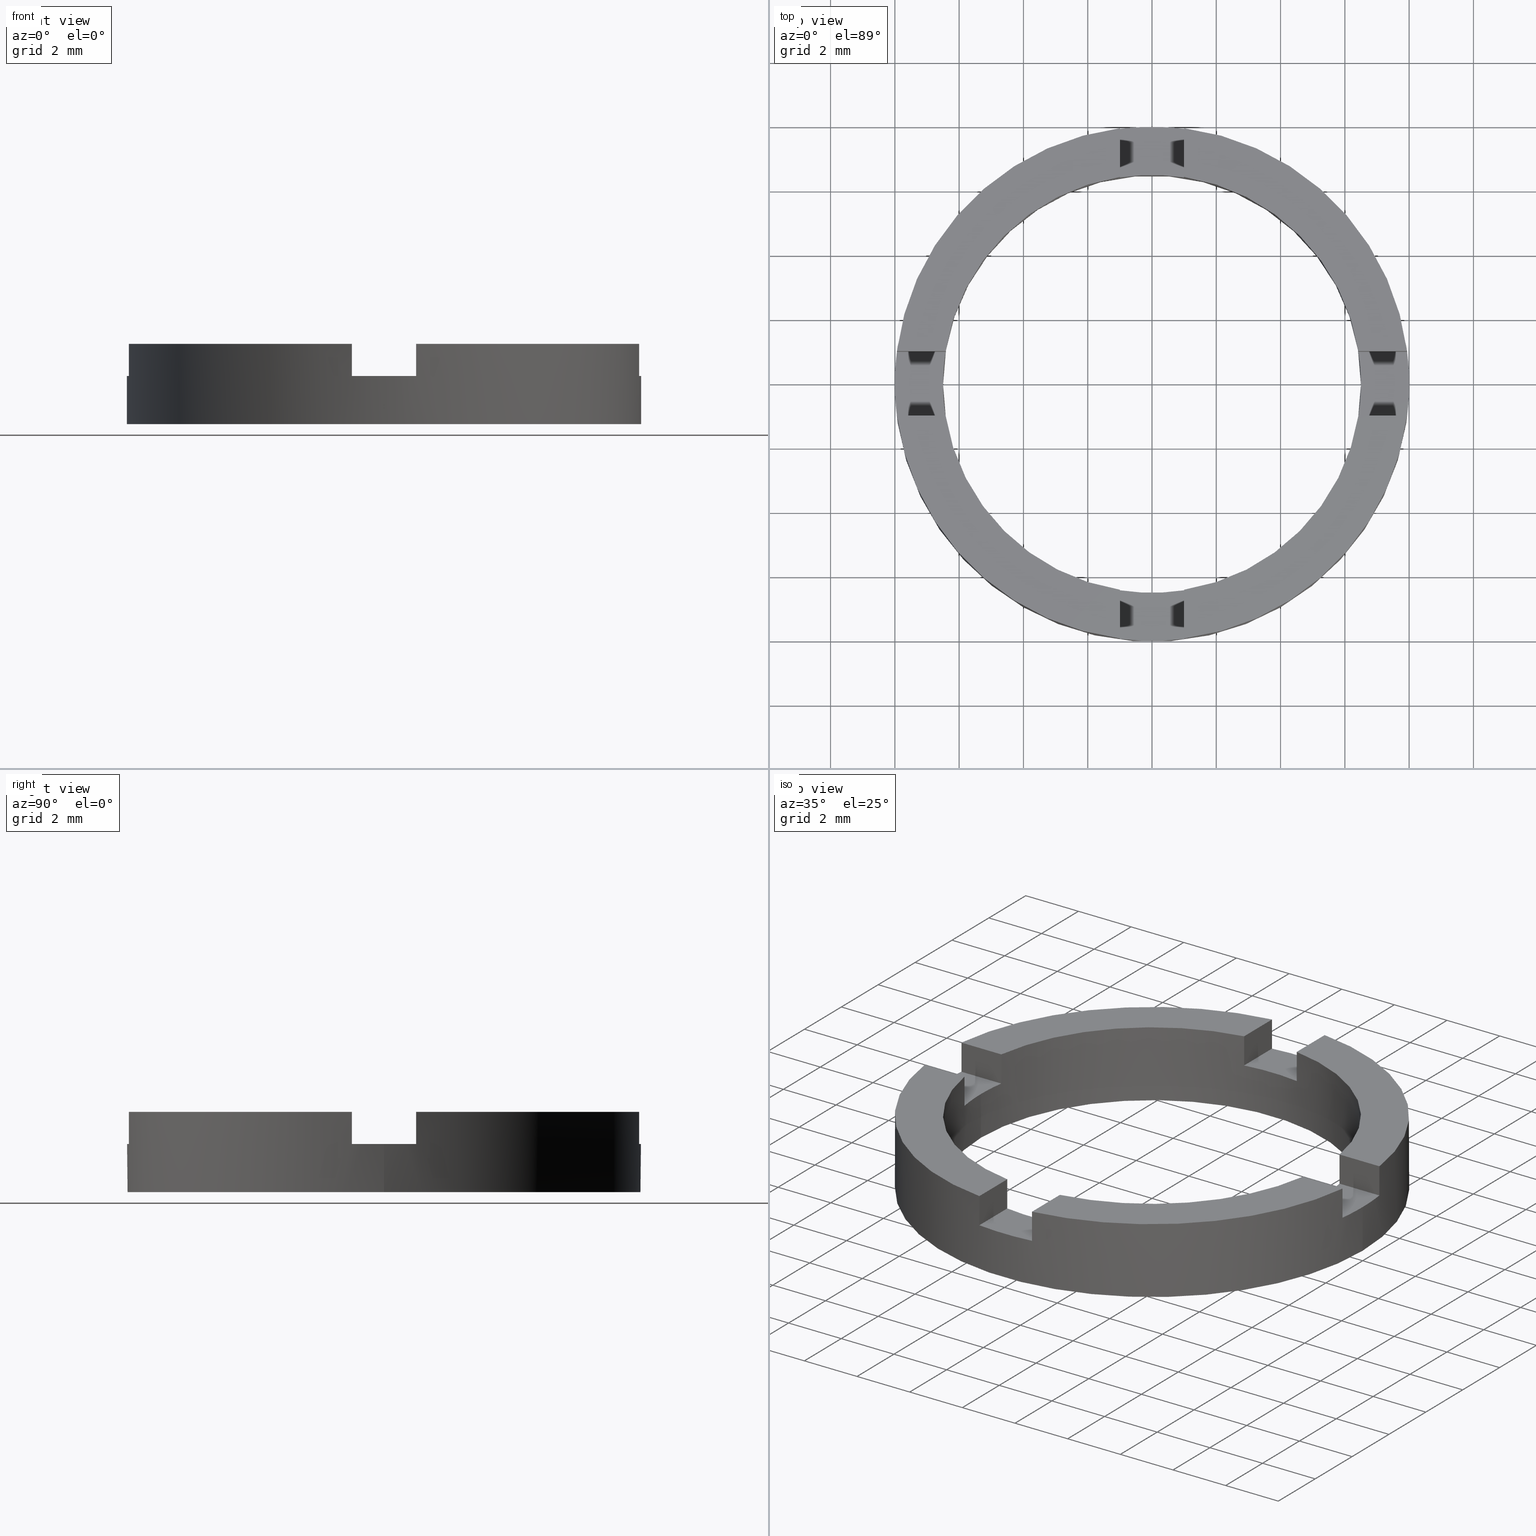
[diagram: canonical four-view strip — front | top / right | iso, engineering-drawing reading convention]
A machine part, canonical four-view strip (front | top / right | iso — engineering-drawing reading convention). The complete STEP part file that produces these views, byte-faithful:
ISO-10303-21;
HEADER;
FILE_DESCRIPTION (( 'STEP AP203' ),
    '1' );
FILE_NAME ('514040.step',
    '2024-12-26T02:31:48',
    ( 'MSI' ),
    ( '' ),
    'SwSTEP 2.0',
    'SolidWorks 2020',
    '' );
FILE_SCHEMA (( 'CONFIG_CONTROL_DESIGN' ));
ENDSEC;

DATA;
#1 = VERTEX_POINT ( 'NONE', #269 ) ;
#2 = DIRECTION ( 'NONE',  ( 1.000000000000000000, -3.740497495074990297E-15, 0.000000000000000000 ) ) ;
#3 = ADVANCED_FACE ( 'NONE', ( #358 ), #367, .T. ) ;
#4 = PLANE ( 'NONE',  #635 ) ;
#5 = CARTESIAN_POINT ( 'NONE',  ( -0.9999999999999986677, 6.422616289332565565, 1.500000000000000000 ) ) ;
#6 = EDGE_CURVE ( 'NONE', #628, #634, #374, .T. ) ;
#7 = CARTESIAN_POINT ( 'NONE',  ( 0.000000000000000000, 0.000000000000000000, 1.500000000000000000 ) ) ;
#8 = CARTESIAN_POINT ( 'NONE',  ( -0.9999999999999986677, 7.937253933193772149, 1.500000000000000000 ) ) ;
#9 = EDGE_CURVE ( 'NONE', #297, #764, #86, .T. ) ;
#10 = DIRECTION ( 'NONE',  ( -0.000000000000000000, -0.000000000000000000, -1.000000000000000000 ) ) ;
#11 = CARTESIAN_POINT ( 'NONE',  ( 8.000000000000000000, 9.797174393178825657E-16, 0.000000000000000000 ) ) ;
#12 = AXIS2_PLACEMENT_3D ( 'NONE', #762, #602, #381 ) ;
#13 = CARTESIAN_POINT ( 'NONE',  ( -0.9999999999999986677, -7.937253933193772149, 1.500000000000000000 ) ) ;
#14 = DIRECTION ( 'NONE',  ( -0.000000000000000000, -0.000000000000000000, 1.000000000000000000 ) ) ;
#15 = DESIGN_CONTEXT ( 'detailed design', #75, 'design' ) ;
#16 = DIRECTION ( 'NONE',  ( -0.000000000000000000, -0.000000000000000000, -1.000000000000000000 ) ) ;
#17 = ORIENTED_EDGE ( 'NONE', *, *, #81, .T. ) ;
#18 = ORIENTED_EDGE ( 'NONE', *, *, #682, .F. ) ;
#19 = CC_DESIGN_PERSON_AND_ORGANIZATION_ASSIGNMENT ( #742, #773, ( #534 ) ) ;
#20 = ORIENTED_EDGE ( 'NONE', *, *, #505, .F. ) ;
#21 = EDGE_CURVE ( 'NONE', #562, #483, #351, .T. ) ;
#22 = DIRECTION ( 'NONE',  ( 1.000000000000000000, 0.000000000000000000, 0.000000000000000000 ) ) ;
#23 = ORIENTED_EDGE ( 'NONE', *, *, #587, .F. ) ;
#24 = EDGE_CURVE ( 'NONE', #726, #472, #640, .T. ) ;
#25 = CARTESIAN_POINT ( 'NONE',  ( -6.422616289332562012, 1.000000000000023093, 1.500000000000000000 ) ) ;
#26 = VERTEX_POINT ( 'NONE', #13 ) ;
#27 = ORIENTED_EDGE ( 'NONE', *, *, #450, .F. ) ;
#28 = ORIENTED_EDGE ( 'NONE', *, *, #433, .F. ) ;
#29 = CARTESIAN_POINT ( 'NONE',  ( -7.937253933193768596, 1.000000000000028644, 2.500000000000000000 ) ) ;
#30 = ORIENTED_EDGE ( 'NONE', *, *, #162, .F. ) ;
#31 = ORIENTED_EDGE ( 'NONE', *, *, #191, .F. ) ;
#32 = EDGE_LOOP ( 'NONE', ( #249, #366, #95, #194 ) ) ;
#33 = AXIS2_PLACEMENT_3D ( 'NONE', #335, #252, #494 ) ;
#34 = ORIENTED_EDGE ( 'NONE', *, *, #312, .T. ) ;
#35 = EDGE_CURVE ( 'NONE', #771, #552, #106, .T. ) ;
#36 = ORIENTED_EDGE ( 'NONE', *, *, #224, .T. ) ;
#37 = APPROVAL_ROLE ( '' ) ;
#38 = ORIENTED_EDGE ( 'NONE', *, *, #337, .F. ) ;
#39 = ADVANCED_FACE ( 'NONE', ( #631 ), #84, .T. ) ;
#40 = CARTESIAN_POINT ( 'NONE',  ( -0.9999999999999986677, -7.937253933193772149, 2.500000000000000000 ) ) ;
#41 = LINE ( 'NONE', #275, #305 ) ;
#42 = APPROVAL_ROLE ( '' ) ;
#43 = CARTESIAN_POINT ( 'NONE',  ( 0.000000000000000000, 0.000000000000000000, 2.500000000000000000 ) ) ;
#44 = ADVANCED_FACE ( 'NONE', ( #348 ), #89, .F. ) ;
#45 = AXIS2_PLACEMENT_3D ( 'NONE', #712, #583, #284 ) ;
#46 = DIRECTION ( 'NONE',  ( -0.000000000000000000, -0.000000000000000000, -1.000000000000000000 ) ) ;
#47 = DIRECTION ( 'NONE',  ( -0.000000000000000000, 0.000000000000000000, 1.000000000000000000 ) ) ;
#48 = APPROVAL ( #623, 'δָ��' ) ;
#49 = CARTESIAN_POINT ( 'NONE',  ( 0.000000000000000000, 0.000000000000000000, 1.500000000000000000 ) ) ;
#50 = AXIS2_PLACEMENT_3D ( 'NONE', #43, #232, #328 ) ;
#51 = CARTESIAN_POINT ( 'NONE',  ( 1.000000000000001332, -7.937253933193772149, 1.500000000000000000 ) ) ;
#52 = ADVANCED_FACE ( 'NONE', ( #371 ), #65, .F. ) ;
#53 = DIRECTION ( 'NONE',  ( -0.000000000000000000, -0.000000000000000000, 1.000000000000000000 ) ) ;
#54 = CARTESIAN_POINT ( 'NONE',  ( 0.000000000000000000, 0.000000000000000000, 2.500000000000000000 ) ) ;
#55 = DIRECTION ( 'NONE',  ( -0.000000000000000000, -0.000000000000000000, 1.000000000000000000 ) ) ;
#56 = CARTESIAN_POINT ( 'NONE',  ( 3.740497495074986353E-15, 0.9999999999999988898, 1.500000000000000000 ) ) ;
#57 = EDGE_CURVE ( 'NONE', #511, #555, #101, .T. ) ;
#58 = EDGE_CURVE ( 'NONE', #496, #564, #617, .T. ) ;
#59 = CARTESIAN_POINT ( 'NONE',  ( -6.422616289332568229, -0.9999999999999772404, 2.500000000000000000 ) ) ;
#60 = DIRECTION ( 'NONE',  ( -1.355252715606880543E-17, 1.000000000000000000, 0.000000000000000000 ) ) ;
#61 = PRODUCT_RELATED_PRODUCT_CATEGORY ( 'detail', '', ( #530 ) ) ;
#62 = DIRECTION ( 'NONE',  ( 1.000000000000000000, 0.000000000000000000, 0.000000000000000000 ) ) ;
#63 = AXIS2_PLACEMENT_3D ( 'NONE', #401, #82, #652 ) ;
#64 = EDGE_CURVE ( 'NONE', #553, #764, #111, .T. ) ;
#65 = PLANE ( 'NONE',  #599 ) ;
#66 = CARTESIAN_POINT ( 'NONE',  ( 0.000000000000000000, 0.000000000000000000, 2.500000000000000000 ) ) ;
#67 = AXIS2_PLACEMENT_3D ( 'NONE', #76, #286, #333 ) ;
#68 = CARTESIAN_POINT ( 'NONE',  ( 0.000000000000000000, 0.000000000000000000, 1.500000000000000000 ) ) ;
#69 = DIRECTION ( 'NONE',  ( 0.000000000000000000, 1.000000000000000000, -0.000000000000000000 ) ) ;
#70 = EDGE_CURVE ( 'NONE', #628, #726, #643, .T. ) ;
#71 = DIRECTION ( 'NONE',  ( -0.000000000000000000, 0.000000000000000000, 1.000000000000000000 ) ) ;
#72 = DIRECTION ( 'NONE',  ( 1.000000000000000000, 0.000000000000000000, 0.000000000000000000 ) ) ;
#73 = PERSON_AND_ORGANIZATION_ROLE ( 'creator' ) ;
#74 = DIRECTION ( 'NONE',  ( 0.000000000000000000, 0.000000000000000000, 1.000000000000000000 ) ) ;
#75 = APPLICATION_CONTEXT ( 'configuration controlled 3d designs of mechanical parts and assemblies' ) ;
#76 = CARTESIAN_POINT ( 'NONE',  ( 0.000000000000000000, 0.000000000000000000, 1.500000000000000000 ) ) ;
#77 = DIRECTION ( 'NONE',  ( 0.000000000000000000, 0.000000000000000000, 1.000000000000000000 ) ) ;
#78 = CARTESIAN_POINT ( 'NONE',  ( -0.9999999999999986677, -7.937253933193772149, 1.500000000000000000 ) ) ;
#79 = AXIS2_PLACEMENT_3D ( 'NONE', #571, #16, #317 ) ;
#80 = AXIS2_PLACEMENT_3D ( 'NONE', #49, #47, #591 ) ;
#81 = EDGE_CURVE ( 'NONE', #782, #764, #126, .T. ) ;
#82 = DIRECTION ( 'NONE',  ( -0.000000000000000000, 0.000000000000000000, 1.000000000000000000 ) ) ;
#83 = CARTESIAN_POINT ( 'NONE',  ( -6.500000000000000888, 0.000000000000000000, 2.500000000000000000 ) ) ;
#84 = CYLINDRICAL_SURFACE ( 'NONE', #259, 8.000000000000000000 ) ;
#85 = ORIENTED_EDGE ( 'NONE', *, *, #35, .T. ) ;
#86 = LINE ( 'NONE', #569, #115 ) ;
#87 = DIRECTION ( 'NONE',  ( -0.000000000000000000, -0.000000000000000000, 1.000000000000000000 ) ) ;
#88 = ORIENTED_EDGE ( 'NONE', *, *, #21, .F. ) ;
#89 = CYLINDRICAL_SURFACE ( 'NONE', #594, 6.500000000000000888 ) ;
#90 = ORIENTED_EDGE ( 'NONE', *, *, #434, .F. ) ;
#91 = AXIS2_PLACEMENT_3D ( 'NONE', #572, #457, #125 ) ;
#92 = VECTOR ( 'NONE', #345, 1000.000000000000000 ) ;
#93 = CARTESIAN_POINT ( 'NONE',  ( 1.000000000000001332, -6.422616289332564676, 2.500000000000000000 ) ) ;
#94 = PLANE ( 'NONE',  #614 ) ;
#95 = ORIENTED_EDGE ( 'NONE', *, *, #134, .T. ) ;
#96 = DIRECTION ( 'NONE',  ( 1.000000000000000000, -3.740497495074990297E-15, 0.000000000000000000 ) ) ;
#97 = ORIENTED_EDGE ( 'NONE', *, *, #24, .T. ) ;
#98 = VERTEX_POINT ( 'NONE', #581 ) ;
#99 = EDGE_LOOP ( 'NONE', ( #741, #285 ) ) ;
#100 = ORIENTED_EDGE ( 'NONE', *, *, #460, .F. ) ;
#101 = LINE ( 'NONE', #190, #103 ) ;
#102 = ORIENTED_EDGE ( 'NONE', *, *, #204, .F. ) ;
#103 = VECTOR ( 'NONE', #625, 1000.000000000000000 ) ;
#104 = DIRECTION ( 'NONE',  ( 1.000000000000000000, 0.000000000000000000, 0.000000000000000000 ) ) ;
#105 = ORIENTED_EDGE ( 'NONE', *, *, #403, .T. ) ;
#106 = LINE ( 'NONE', #563, #92 ) ;
#107 = VERTEX_POINT ( 'NONE', #476 ) ;
#108 = AXIS2_PLACEMENT_3D ( 'NONE', #222, #276, #283 ) ;
#109 = ORIENTED_EDGE ( 'NONE', *, *, #608, .T. ) ;
#110 = EDGE_CURVE ( 'NONE', #362, #251, #670, .T. ) ;
#111 = CIRCLE ( 'NONE', #50, 8.000000000000000000 ) ;
#112 = ORIENTED_EDGE ( 'NONE', *, *, #379, .F. ) ;
#113 = ORIENTED_EDGE ( 'NONE', *, *, #538, .F. ) ;
#114 = VERTEX_POINT ( 'NONE', #584 ) ;
#115 = VECTOR ( 'NONE', #604, 1000.000000000000000 ) ;
#116 = DIRECTION ( 'NONE',  ( 1.000000000000000000, 0.000000000000000000, 0.000000000000000000 ) ) ;
#117 = ORIENTED_EDGE ( 'NONE', *, *, #537, .F. ) ;
#118 = DIRECTION ( 'NONE',  ( 1.000000000000000000, 1.355252715606880543E-17, 0.000000000000000000 ) ) ;
#119 = DIRECTION ( 'NONE',  ( -3.726944967918921492E-15, -1.000000000000000000, 0.000000000000000000 ) ) ;
#120 = AXIS2_PLACEMENT_3D ( 'NONE', #151, #469, #323 ) ;
#121 = MANIFOLD_SOLID_BREP ( '�г�-����1', #557 ) ;
#122 = LINE ( 'NONE', #253, #681 ) ;
#123 = DIRECTION ( 'NONE',  ( -1.000000000000000000, 0.000000000000000000, 0.000000000000000000 ) ) ;
#124 = LINE ( 'NONE', #638, #129 ) ;
#125 = DIRECTION ( 'NONE',  ( 1.000000000000000000, 0.000000000000000000, 0.000000000000000000 ) ) ;
#126 = LINE ( 'NONE', #279, #425 ) ;
#127 = DIRECTION ( 'NONE',  ( 0.000000000000000000, 0.000000000000000000, -1.000000000000000000 ) ) ;
#128 = FACE_OUTER_BOUND ( 'NONE', #215, .T. ) ;
#129 = VECTOR ( 'NONE', #465, 1000.000000000000000 ) ;
#130 = LINE ( 'NONE', #383, #397 ) ;
#131 = CARTESIAN_POINT ( 'NONE',  ( 0.000000000000000000, 0.000000000000000000, 2.500000000000000000 ) ) ;
#132 = FACE_OUTER_BOUND ( 'NONE', #621, .T. ) ;
#133 = CARTESIAN_POINT ( 'NONE',  ( 8.000000000000000000, 9.797174393178825657E-16, 1.500000000000000000 ) ) ;
#134 = EDGE_CURVE ( 'NONE', #114, #1, #124, .T. ) ;
#135 = CIRCLE ( 'NONE', #80, 8.000000000000000000 ) ;
#136 = LINE ( 'NONE', #5, #145 ) ;
#137 = DIRECTION ( 'NONE',  ( 0.000000000000000000, 1.000000000000000000, -0.000000000000000000 ) ) ;
#138 = LINE ( 'NONE', #277, #415 ) ;
#139 = CARTESIAN_POINT ( 'NONE',  ( 7.937253933193775701, 0.9999999999999692468, 2.500000000000000000 ) ) ;
#140 = FACE_OUTER_BOUND ( 'NONE', #492, .T. ) ;
#141 = DIRECTION ( 'NONE',  ( 0.000000000000000000, 0.000000000000000000, 1.000000000000000000 ) ) ;
#142 = CIRCLE ( 'NONE', #63, 8.000000000000000000 ) ;
#143 = CIRCLE ( 'NONE', #497, 8.000000000000000000 ) ;
#144 = CARTESIAN_POINT ( 'NONE',  ( 1.000000000000001332, 1.355252715606882391E-17, 2.500000000000000000 ) ) ;
#145 = VECTOR ( 'NONE', #53, 1000.000000000000000 ) ;
#146 = VECTOR ( 'NONE', #234, 1000.000000000000000 ) ;
#147 = ADVANCED_FACE ( 'NONE', ( #132 ), #326, .T. ) ;
#148 = APPROVAL_ROLE ( '' ) ;
#149 = CIRCLE ( 'NONE', #519, 8.000000000000000000 ) ;
#150 = LINE ( 'NONE', #306, #418 ) ;
#151 = CARTESIAN_POINT ( 'NONE',  ( 0.000000000000000000, 0.000000000000000000, 2.500000000000000000 ) ) ;
#152 = FACE_OUTER_BOUND ( 'NONE', #32, .T. ) ;
#153 = FACE_OUTER_BOUND ( 'NONE', #554, .T. ) ;
#154 = APPROVAL_STATUS ( 'not_yet_approved' ) ;
#155 = DIRECTION ( 'NONE',  ( 0.000000000000000000, 0.000000000000000000, 1.000000000000000000 ) ) ;
#156 = LINE ( 'NONE', #593, #658 ) ;
#157 = VECTOR ( 'NONE', #545, 1000.000000000000000 ) ;
#158 = CARTESIAN_POINT ( 'NONE',  ( 0.000000000000000000, 0.000000000000000000, 2.500000000000000000 ) ) ;
#159 = AXIS2_PLACEMENT_3D ( 'NONE', #349, #192, #62 ) ;
#160 = CIRCLE ( 'NONE', #321, 6.500000000000000888 ) ;
#161 = EDGE_CURVE ( 'NONE', #26, #114, #143, .T. ) ;
#162 = EDGE_CURVE ( 'NONE', #642, #748, #130, .T. ) ;
#163 = LINE ( 'NONE', #319, #166 ) ;
#164 = PERSON_AND_ORGANIZATION ( #598, #427 ) ;
#165 = DIRECTION ( 'NONE',  ( -0.000000000000000000, 0.000000000000000000, 1.000000000000000000 ) ) ;
#166 = VECTOR ( 'NONE', #566, 1000.000000000000000 ) ;
#167 = VECTOR ( 'NONE', #245, 1000.000000000000000 ) ;
#168 = FACE_OUTER_BOUND ( 'NONE', #525, .T. ) ;
#169 = CARTESIAN_POINT ( 'NONE',  ( -6.422616289332568229, -0.9999999999999772404, 1.500000000000000000 ) ) ;
#170 = APPROVAL ( #532, 'δָ��' ) ;
#171 = DIRECTION ( 'NONE',  ( -0.000000000000000000, -0.000000000000000000, -1.000000000000000000 ) ) ;
#172 = AXIS2_PLACEMENT_3D ( 'NONE', #421, #498, #734 ) ;
#173 = ADVANCED_FACE ( 'NONE', ( #140 ), #578, .T. ) ;
#174 = CARTESIAN_POINT ( 'NONE',  ( -7.937253933193775701, -0.9999999999999715783, 1.500000000000000000 ) ) ;
#175 = FACE_OUTER_BOUND ( 'NONE', #495, .T. ) ;
#176 = DIRECTION ( 'NONE',  ( -0.000000000000000000, 0.000000000000000000, 1.000000000000000000 ) ) ;
#177 = DIRECTION ( 'NONE',  ( -3.740497495074990297E-15, -1.000000000000000000, 0.000000000000000000 ) ) ;
#178 = LINE ( 'NONE', #692, #443 ) ;
#179 = DATE_AND_TIME ( #687, #710 ) ;
#180 = AXIS2_PLACEMENT_3D ( 'NONE', #56, #725, #96 ) ;
#181 = CARTESIAN_POINT ( 'NONE',  ( 6.422616289332569117, 0.9999999999999749090, 1.500000000000000000 ) ) ;
#182 = CARTESIAN_POINT ( 'NONE',  ( 1.000000000000001332, 7.937253933193772149, 1.500000000000000000 ) ) ;
#183 = DATE_AND_TIME ( #706, #444 ) ;
#184 = CIRCLE ( 'NONE', #91, 6.500000000000000888 ) ;
#185 = PERSON_AND_ORGANIZATION ( #598, #427 ) ;
#186 = DIRECTION ( 'NONE',  ( 1.000000000000000000, 1.355252715606880543E-17, 0.000000000000000000 ) ) ;
#187 = FACE_OUTER_BOUND ( 'NONE', #750, .T. ) ;
#188 = PRODUCT_DEFINITION ( 'δ֪', '', #534, #15 ) ;
#189 = FACE_OUTER_BOUND ( 'NONE', #620, .T. ) ;
#190 = CARTESIAN_POINT ( 'NONE',  ( 6.422616289332569117, 0.9999999999999749090, 1.500000000000000000 ) ) ;
#191 = EDGE_CURVE ( 'NONE', #726, #477, #138, .T. ) ;
#192 = DIRECTION ( 'NONE',  ( 0.000000000000000000, 0.000000000000000000, 1.000000000000000000 ) ) ;
#193 = CIRCLE ( 'NONE', #236, 6.500000000000000888 ) ;
#194 = ORIENTED_EDGE ( 'NONE', *, *, #527, .T. ) ;
#195 = PERSON_AND_ORGANIZATION ( #598, #427 ) ;
#196 = ORIENTED_EDGE ( 'NONE', *, *, #205, .T. ) ;
#197 = DIRECTION ( 'NONE',  ( -0.000000000000000000, 0.000000000000000000, 1.000000000000000000 ) ) ;
#198 = DIRECTION ( 'NONE',  ( 1.000000000000000000, -3.740497495074990297E-15, 0.000000000000000000 ) ) ;
#199 = CC_DESIGN_PERSON_AND_ORGANIZATION_ASSIGNMENT ( #708, #278, ( #534 ) ) ;
#200 = CARTESIAN_POINT ( 'NONE',  ( 0.000000000000000000, 0.000000000000000000, 0.000000000000000000 ) ) ;
#201 = VERTEX_POINT ( 'NONE', #40 ) ;
#202 = ORIENTED_EDGE ( 'NONE', *, *, #696, .F. ) ;
#203 = VERTEX_POINT ( 'NONE', #274 ) ;
#204 = EDGE_CURVE ( 'NONE', #483, #562, #392, .T. ) ;
#205 = EDGE_CURVE ( 'NONE', #251, #748, #683, .T. ) ;
#206 = ORIENTED_EDGE ( 'NONE', *, *, #260, .T. ) ;
#207 = DATE_AND_TIME ( #737, #474 ) ;
#208 = ORIENTED_EDGE ( 'NONE', *, *, #110, .T. ) ;
#209 = PLANE ( 'NONE',  #12 ) ;
#210 = LOCAL_TIME ( 10, 31, 48.00000000000000000, #485 ) ;
#211 = ORIENTED_EDGE ( 'NONE', *, *, #695, .F. ) ;
#212 = CARTESIAN_POINT ( 'NONE',  ( 0.000000000000000000, 0.000000000000000000, 1.500000000000000000 ) ) ;
#213 = ORIENTED_EDGE ( 'NONE', *, *, #334, .T. ) ;
#214 = PERSON_AND_ORGANIZATION ( #598, #427 ) ;
#215 = EDGE_LOOP ( 'NONE', ( #767, #753, #770, #518, #522, #754 ) ) ;
#216 = APPROVAL_PERSON_ORGANIZATION ( #747, #48, #42 ) ;
#217 = VERTEX_POINT ( 'NONE', #459 ) ;
#218 = CARTESIAN_POINT ( 'NONE',  ( 0.000000000000000000, 0.000000000000000000, 1.500000000000000000 ) ) ;
#219 = ORIENTED_EDGE ( 'NONE', *, *, #501, .T. ) ;
#220 = ORIENTED_EDGE ( 'NONE', *, *, #134, .F. ) ;
#221 = DIRECTION ( 'NONE',  ( 1.000000000000000000, 0.000000000000000000, 0.000000000000000000 ) ) ;
#222 = CARTESIAN_POINT ( 'NONE',  ( 0.000000000000000000, 0.000000000000000000, 0.000000000000000000 ) ) ;
#223 = ORIENTED_EDGE ( 'NONE', *, *, #272, .F. ) ;
#224 = EDGE_CURVE ( 'NONE', #201, #507, #673, .T. ) ;
#225 = EDGE_CURVE ( 'NONE', #238, #201, #410, .T. ) ;
#226 = EDGE_LOOP ( 'NONE', ( #735, #618, #473, #565 ) ) ;
#227 = DIRECTION ( 'NONE',  ( 0.000000000000000000, 0.000000000000000000, 1.000000000000000000 ) ) ;
#228 = ORIENTED_EDGE ( 'NONE', *, *, #746, .F. ) ;
#229 = APPLICATION_PROTOCOL_DEFINITION ( 'international standard', 'config_control_design', 1994, #385 ) ;
#230 = CARTESIAN_POINT ( 'NONE',  ( 0.000000000000000000, 0.000000000000000000, 2.500000000000000000 ) ) ;
#231 = DATE_TIME_ROLE ( 'creation_date' ) ;
#232 = DIRECTION ( 'NONE',  ( 0.000000000000000000, 0.000000000000000000, 1.000000000000000000 ) ) ;
#233 = DIRECTION ( 'NONE',  ( -1.355252715606880543E-17, 1.000000000000000000, 0.000000000000000000 ) ) ;
#234 = DIRECTION ( 'NONE',  ( -0.000000000000000000, -0.000000000000000000, 1.000000000000000000 ) ) ;
#235 = CC_DESIGN_DATE_AND_TIME_ASSIGNMENT ( #482, #701, ( #438 ) ) ;
#236 = AXIS2_PLACEMENT_3D ( 'NONE', #755, #141, #116 ) ;
#237 = CARTESIAN_POINT ( 'NONE',  ( -8.000000000000000000, 0.000000000000000000, 1.500000000000000000 ) ) ;
#238 = VERTEX_POINT ( 'NONE', #536 ) ;
#239 = DIRECTION ( 'NONE',  ( -1.000000000000000000, 0.000000000000000000, 0.000000000000000000 ) ) ;
#240 = ORIENTED_EDGE ( 'NONE', *, *, #537, .T. ) ;
#241 = EDGE_LOOP ( 'NONE', ( #294, #18, #206, #629 ) ) ;
#242 = CARTESIAN_POINT ( 'NONE',  ( 0.000000000000000000, 0.000000000000000000, 0.000000000000000000 ) ) ;
#243 = EDGE_LOOP ( 'NONE', ( #30, #250, #17, #258, #117, #731, #728, #626, #90, #514, #208, #196 ) ) ;
#244 = ORIENTED_EDGE ( 'NONE', *, *, #70, .T. ) ;
#245 = DIRECTION ( 'NONE',  ( 0.000000000000000000, 1.000000000000000000, -0.000000000000000000 ) ) ;
#246 = CARTESIAN_POINT ( 'NONE',  ( 6.422616289332561124, -1.000000000000024869, 2.500000000000000000 ) ) ;
#247 = EDGE_LOOP ( 'NONE', ( #223, #491, #256, #213, #105, #354 ) ) ;
#248 = EDGE_CURVE ( 'NONE', #466, #297, #404, .T. ) ;
#249 = ORIENTED_EDGE ( 'NONE', *, *, #543, .F. ) ;
#250 = ORIENTED_EDGE ( 'NONE', *, *, #403, .F. ) ;
#251 = VERTEX_POINT ( 'NONE', #454 ) ;
#252 = DIRECTION ( 'NONE',  ( 0.000000000000000000, 0.000000000000000000, 1.000000000000000000 ) ) ;
#253 = CARTESIAN_POINT ( 'NONE',  ( 6.422616289332561124, -1.000000000000024869, 1.500000000000000000 ) ) ;
#254 = EDGE_LOOP ( 'NONE', ( #512, #766, #480, #85 ) ) ;
#255 = ORIENTED_EDGE ( 'NONE', *, *, #758, .F. ) ;
#256 = ORIENTED_EDGE ( 'NONE', *, *, #587, .T. ) ;
#257 =( GEOMETRIC_REPRESENTATION_CONTEXT ( 3 ) GLOBAL_UNCERTAINTY_ASSIGNED_CONTEXT ( ( #303 ) ) GLOBAL_UNIT_ASSIGNED_CONTEXT ( ( #510, #678, #445 ) ) REPRESENTATION_CONTEXT ( 'NONE', 'WORKASPACE' ) );
#258 = ORIENTED_EDGE ( 'NONE', *, *, #64, .F. ) ;
#259 = AXIS2_PLACEMENT_3D ( 'NONE', #674, #756, #262 ) ;
#260 = EDGE_CURVE ( 'NONE', #555, #552, #668, .T. ) ;
#261 = CARTESIAN_POINT ( 'NONE',  ( -0.9999999999999986677, 7.937253933193772149, 1.500000000000000000 ) ) ;
#262 = DIRECTION ( 'NONE',  ( -1.000000000000000000, 0.000000000000000000, 0.000000000000000000 ) ) ;
#263 = PRODUCT_DEFINITION_SHAPE ( 'NONE', 'NONE',  #188 ) ;
#264 = CARTESIAN_POINT ( 'NONE',  ( 7.937253933193775701, 0.9999999999999692468, 1.500000000000000000 ) ) ;
#265 = AXIS2_PLACEMENT_3D ( 'NONE', #7, #653, #104 ) ;
#266 = CARTESIAN_POINT ( 'NONE',  ( 0.000000000000000000, 0.000000000000000000, 1.500000000000000000 ) ) ;
#267 = CARTESIAN_POINT ( 'NONE',  ( 3.740497495074986353E-15, 0.9999999999999988898, 1.500000000000000000 ) ) ;
#268 = DIRECTION ( 'NONE',  ( 1.000000000000000000, 0.000000000000000000, 0.000000000000000000 ) ) ;
#269 = CARTESIAN_POINT ( 'NONE',  ( 1.000000000000001332, -6.422616289332564676, 1.500000000000000000 ) ) ;
#270 = CARTESIAN_POINT ( 'NONE',  ( 0.000000000000000000, 0.000000000000000000, 1.500000000000000000 ) ) ;
#271 = PLANE ( 'NONE',  #388 ) ;
#272 = EDGE_CURVE ( 'NONE', #511, #771, #407, .T. ) ;
#273 = AXIS2_PLACEMENT_3D ( 'NONE', #451, #71, #221 ) ;
#274 = CARTESIAN_POINT ( 'NONE',  ( -0.9999999999999986677, 6.422616289332565565, 2.500000000000000000 ) ) ;
#275 = CARTESIAN_POINT ( 'NONE',  ( -0.9999999999999986677, -6.422616289332565565, 1.500000000000000000 ) ) ;
#276 = DIRECTION ( 'NONE',  ( 0.000000000000000000, 0.000000000000000000, 1.000000000000000000 ) ) ;
#277 = CARTESIAN_POINT ( 'NONE',  ( 1.000000000000001332, 1.355252715606882391E-17, 1.500000000000000000 ) ) ;
#278 = PERSON_AND_ORGANIZATION_ROLE ( 'creator' ) ;
#279 = CARTESIAN_POINT ( 'NONE',  ( 7.937253933193768596, -1.000000000000030642, 1.500000000000000000 ) ) ;
#280 = AXIS2_PLACEMENT_3D ( 'NONE', #774, #155, #533 ) ;
#281 = EDGE_CURVE ( 'NONE', #472, #743, #424, .T. ) ;
#282 = ORIENTED_EDGE ( 'NONE', *, *, #316, .F. ) ;
#283 = DIRECTION ( 'NONE',  ( 1.000000000000000000, 0.000000000000000000, 0.000000000000000000 ) ) ;
#284 = DIRECTION ( 'NONE',  ( 1.000000000000000000, 0.000000000000000000, 0.000000000000000000 ) ) ;
#285 = ORIENTED_EDGE ( 'NONE', *, *, #21, .T. ) ;
#286 = DIRECTION ( 'NONE',  ( 0.000000000000000000, -0.000000000000000000, -1.000000000000000000 ) ) ;
#287 = ORIENTED_EDGE ( 'NONE', *, *, #35, .F. ) ;
#288 = VERTEX_POINT ( 'NONE', #597 ) ;
#289 = ORIENTED_EDGE ( 'NONE', *, *, #575, .T. ) ;
#290 = AXIS2_PLACEMENT_3D ( 'NONE', #230, #77, #526 ) ;
#291 = DIRECTION ( 'NONE',  ( 1.000000000000000000, 0.000000000000000000, 0.000000000000000000 ) ) ;
#292 = ORIENTED_EDGE ( 'NONE', *, *, #70, .F. ) ;
#293 = ORIENTED_EDGE ( 'NONE', *, *, #344, .T. ) ;
#294 = ORIENTED_EDGE ( 'NONE', *, *, #281, .F. ) ;
#295 = ORIENTED_EDGE ( 'NONE', *, *, #24, .F. ) ;
#296 = DIRECTION ( 'NONE',  ( 1.000000000000000000, 8.881784197001250746E-15, 0.000000000000000000 ) ) ;
#297 = VERTEX_POINT ( 'NONE', #246 ) ;
#298 = ORIENTED_EDGE ( 'NONE', *, *, #248, .T. ) ;
#299 = ADVANCED_FACE ( 'NONE', ( #128 ), #307, .T. ) ;
#300 = ORIENTED_EDGE ( 'NONE', *, *, #224, .F. ) ;
#301 = ORIENTED_EDGE ( 'NONE', *, *, #713, .T. ) ;
#302 = EDGE_CURVE ( 'NONE', #477, #743, #387, .T. ) ;
#303 = UNCERTAINTY_MEASURE_WITH_UNIT (LENGTH_MEASURE( 1.000000000000000082E-05 ), #510, 'distance_accuracy_value', 'NONE');
#304 = DIRECTION ( 'NONE',  ( 1.000000000000000000, 0.000000000000000000, 0.000000000000000000 ) ) ;
#305 = VECTOR ( 'NONE', #14, 1000.000000000000000 ) ;
#306 = CARTESIAN_POINT ( 'NONE',  ( 1.000000000000001332, 1.355252715606882391E-17, 2.500000000000000000 ) ) ;
#307 = PLANE ( 'NONE',  #757 ) ;
#308 = FACE_OUTER_BOUND ( 'NONE', #247, .T. ) ;
#309 = CIRCLE ( 'NONE', #749, 8.000000000000000000 ) ;
#310 = DIRECTION ( 'NONE',  ( -0.000000000000000000, -0.000000000000000000, 1.000000000000000000 ) ) ;
#311 = APPROVAL ( #154, 'δָ��' ) ;
#312 = EDGE_CURVE ( 'NONE', #634, #496, #662, .T. ) ;
#313 = CARTESIAN_POINT ( 'NONE',  ( 3.740497495074986353E-15, 0.9999999999999988898, 2.500000000000000000 ) ) ;
#314 = DIRECTION ( 'NONE',  ( 1.000000000000000000, 0.000000000000000000, 0.000000000000000000 ) ) ;
#315 = AXIS2_PLACEMENT_3D ( 'NONE', #605, #517, #691 ) ;
#316 = EDGE_CURVE ( 'NONE', #765, #297, #122, .T. ) ;
#317 = DIRECTION ( 'NONE',  ( -1.000000000000000000, 0.000000000000000000, 0.000000000000000000 ) ) ;
#318 = CARTESIAN_POINT ( 'NONE',  ( -0.9999999999999986677, 0.000000000000000000, 1.500000000000000000 ) ) ;
#319 = CARTESIAN_POINT ( 'NONE',  ( 1.000000000000001332, -6.422616289332564676, 1.500000000000000000 ) ) ;
#320 = CARTESIAN_POINT ( 'NONE',  ( 1.000000000000001332, 7.937253933193772149, 2.500000000000000000 ) ) ;
#321 = AXIS2_PLACEMENT_3D ( 'NONE', #270, #368, #570 ) ;
#322 = CARTESIAN_POINT ( 'NONE',  ( 6.500000000000000888, 7.960204194457796463E-16, 2.500000000000000000 ) ) ;
#323 = DIRECTION ( 'NONE',  ( 1.000000000000000000, 0.000000000000000000, 0.000000000000000000 ) ) ;
#324 = DIRECTION ( 'NONE',  ( 1.000000000000000000, 0.000000000000000000, 0.000000000000000000 ) ) ;
#325 = DIRECTION ( 'NONE',  ( -0.000000000000000000, -0.000000000000000000, 1.000000000000000000 ) ) ;
#326 = PLANE ( 'NONE',  #290 ) ;
#327 = SECURITY_CLASSIFICATION_LEVEL ( 'unclassified' ) ;
#328 = DIRECTION ( 'NONE',  ( 1.000000000000000000, 0.000000000000000000, 0.000000000000000000 ) ) ;
#329 = ADVANCED_FACE ( 'NONE', ( #412 ), #94, .T. ) ;
#330 = CARTESIAN_POINT ( 'NONE',  ( 0.000000000000000000, 0.000000000000000000, 0.000000000000000000 ) ) ;
#331 = APPLICATION_PROTOCOL_DEFINITION ( 'international standard', 'config_control_design', 1994, #75 ) ;
#332 = DIRECTION ( 'NONE',  ( 0.000000000000000000, -0.000000000000000000, -1.000000000000000000 ) ) ;
#333 = DIRECTION ( 'NONE',  ( 1.000000000000000000, 0.000000000000000000, 0.000000000000000000 ) ) ;
#334 = EDGE_CURVE ( 'NONE', #765, #782, #665, .T. ) ;
#335 = CARTESIAN_POINT ( 'NONE',  ( 0.000000000000000000, 0.000000000000000000, 2.500000000000000000 ) ) ;
#336 = AXIS2_PLACEMENT_3D ( 'NONE', #266, #197, #357 ) ;
#337 = EDGE_CURVE ( 'NONE', #355, #363, #660, .T. ) ;
#338 = CARTESIAN_POINT ( 'NONE',  ( 0.000000000000000000, 0.000000000000000000, 1.500000000000000000 ) ) ;
#339 = PLANE ( 'NONE',  #172 ) ;
#340 = DIRECTION ( 'NONE',  ( -0.000000000000000000, 0.000000000000000000, 1.000000000000000000 ) ) ;
#341 = AXIS2_PLACEMENT_3D ( 'NONE', #158, #227, #582 ) ;
#342 = DIRECTION ( 'NONE',  ( -0.000000000000000000, -0.000000000000000000, -1.000000000000000000 ) ) ;
#343 = DIRECTION ( 'NONE',  ( 1.000000000000000000, -3.740497495074990297E-15, 0.000000000000000000 ) ) ;
#344 = EDGE_CURVE ( 'NONE', #355, #513, #657, .T. ) ;
#345 = DIRECTION ( 'NONE',  ( -0.000000000000000000, -0.000000000000000000, 1.000000000000000000 ) ) ;
#346 = ORIENTED_EDGE ( 'NONE', *, *, #661, .T. ) ;
#347 = ORIENTED_EDGE ( 'NONE', *, *, #568, .F. ) ;
#348 = FACE_OUTER_BOUND ( 'NONE', #378, .T. ) ;
#349 = CARTESIAN_POINT ( 'NONE',  ( 0.000000000000000000, 0.000000000000000000, 2.500000000000000000 ) ) ;
#350 = VERTEX_POINT ( 'NONE', #707 ) ;
#351 = CIRCLE ( 'NONE', #481, 6.500000000000000888 ) ;
#352 = EDGE_LOOP ( 'NONE', ( #353, #244, #775, #346 ) ) ;
#353 = ORIENTED_EDGE ( 'NONE', *, *, #6, .F. ) ;
#354 = ORIENTED_EDGE ( 'NONE', *, *, #460, .T. ) ;
#355 = VERTEX_POINT ( 'NONE', #409 ) ;
#356 = ORIENTED_EDGE ( 'NONE', *, *, #58, .F. ) ;
#357 = DIRECTION ( 'NONE',  ( 1.000000000000000000, 0.000000000000000000, 0.000000000000000000 ) ) ;
#358 = FACE_OUTER_BOUND ( 'NONE', #352, .T. ) ;
#359 = CARTESIAN_POINT ( 'NONE',  ( -6.422616289332562012, 1.000000000000023093, 1.500000000000000000 ) ) ;
#360 = ORIENTED_EDGE ( 'NONE', *, *, #746, .T. ) ;
#361 = ORIENTED_EDGE ( 'NONE', *, *, #608, .F. ) ;
#362 = VERTEX_POINT ( 'NONE', #237 ) ;
#363 = VERTEX_POINT ( 'NONE', #539 ) ;
#364 = ORIENTED_EDGE ( 'NONE', *, *, #661, .F. ) ;
#365 = ORIENTED_EDGE ( 'NONE', *, *, #162, .T. ) ;
#366 = ORIENTED_EDGE ( 'NONE', *, *, #161, .T. ) ;
#367 = PLANE ( 'NONE',  #336 ) ;
#368 = DIRECTION ( 'NONE',  ( 0.000000000000000000, -0.000000000000000000, -1.000000000000000000 ) ) ;
#369 = PLANE ( 'NONE',  #430 ) ;
#370 = ORIENTED_EDGE ( 'NONE', *, *, #586, .T. ) ;
#371 = FACE_OUTER_BOUND ( 'NONE', #504, .T. ) ;
#372 = ORIENTED_EDGE ( 'NONE', *, *, #538, .T. ) ;
#373 = CC_DESIGN_APPROVAL ( #170, ( #534 ) ) ;
#374 = LINE ( 'NONE', #318, #633 ) ;
#375 = DIRECTION ( 'NONE',  ( 1.000000000000000000, 0.000000000000000000, 0.000000000000000000 ) ) ;
#376 = ORIENTED_EDGE ( 'NONE', *, *, #595, .F. ) ;
#377 = AXIS2_PLACEMENT_3D ( 'NONE', #242, #781, #304 ) ;
#378 = EDGE_LOOP ( 'NONE', ( #471, #347, #622, #520, #295, #292, #645, #487, #738, #28, #372, #88 ) ) ;
#379 = EDGE_CURVE ( 'NONE', #748, #251, #663, .T. ) ;
#380 = ORIENTED_EDGE ( 'NONE', *, *, #64, .T. ) ;
#381 = DIRECTION ( 'NONE',  ( 1.000000000000000000, -3.726944967918921492E-15, 0.000000000000000000 ) ) ;
#382 = DIRECTION ( 'NONE',  ( -1.355252715606880543E-17, 1.000000000000000000, 0.000000000000000000 ) ) ;
#383 = CARTESIAN_POINT ( 'NONE',  ( 8.000000000000000000, 9.797174393178825657E-16, 2.500000000000000000 ) ) ;
#384 = VECTOR ( 'NONE', #386, 1000.000000000000000 ) ;
#385 = APPLICATION_CONTEXT ( 'configuration controlled 3d designs of mechanical parts and assemblies' ) ;
#386 = DIRECTION ( 'NONE',  ( -0.000000000000000000, -0.000000000000000000, -1.000000000000000000 ) ) ;
#387 = LINE ( 'NONE', #182, #672 ) ;
#388 = AXIS2_PLACEMENT_3D ( 'NONE', #606, #119, #436 ) ;
#389 = VECTOR ( 'NONE', #60, 1000.000000000000000 ) ;
#390 = AXIS2_PLACEMENT_3D ( 'NONE', #330, #74, #619 ) ;
#391 = DIRECTION ( 'NONE',  ( 0.000000000000000000, 0.000000000000000000, 1.000000000000000000 ) ) ;
#392 = CIRCLE ( 'NONE', #390, 6.500000000000000888 ) ;
#393 = VECTOR ( 'NONE', #310, 1000.000000000000000 ) ;
#394 = MECHANICAL_CONTEXT ( 'NONE', #385, 'mechanical' ) ;
#395 = CARTESIAN_POINT ( 'NONE',  ( -3.726944967918925436E-15, -1.000000000000001110, 1.500000000000000000 ) ) ;
#396 = DIRECTION ( 'NONE',  ( -0.000000000000000000, -0.000000000000000000, 1.000000000000000000 ) ) ;
#397 = VECTOR ( 'NONE', #46, 1000.000000000000000 ) ;
#398 = VECTOR ( 'NONE', #612, 1000.000000000000000 ) ;
#399 = VECTOR ( 'NONE', #55, 1000.000000000000000 ) ;
#400 = VECTOR ( 'NONE', #475, 1000.000000000000000 ) ;
#401 = CARTESIAN_POINT ( 'NONE',  ( 0.000000000000000000, 0.000000000000000000, 1.500000000000000000 ) ) ;
#402 = FACE_OUTER_BOUND ( 'NONE', #559, .T. ) ;
#403 = EDGE_CURVE ( 'NONE', #782, #642, #135, .T. ) ;
#404 = CIRCLE ( 'NONE', #441, 6.500000000000000888 ) ;
#405 = EDGE_CURVE ( 'NONE', #362, #288, #142, .T. ) ;
#406 = CARTESIAN_POINT ( 'NONE',  ( 1.000000000000001332, 6.422616289332564676, 2.500000000000000000 ) ) ;
#407 = LINE ( 'NONE', #697, #666 ) ;
#408 = LINE ( 'NONE', #174, #146 ) ;
#409 = CARTESIAN_POINT ( 'NONE',  ( -6.422616289332568229, -0.9999999999999772404, 1.500000000000000000 ) ) ;
#410 = CIRCLE ( 'NONE', #120, 8.000000000000000000 ) ;
#411 = ADVANCED_FACE ( 'NONE', ( #402 ), #489, .T. ) ;
#412 = FACE_OUTER_BOUND ( 'NONE', #647, .T. ) ;
#413 = CARTESIAN_POINT ( 'NONE',  ( 0.000000000000000000, 0.000000000000000000, 1.500000000000000000 ) ) ;
#414 = LINE ( 'NONE', #78, #675 ) ;
#415 = VECTOR ( 'NONE', #233, 1000.000000000000000 ) ;
#416 = AXIS2_PLACEMENT_3D ( 'NONE', #338, #332, #296 ) ;
#417 = CARTESIAN_POINT ( 'NONE',  ( 0.000000000000000000, 0.000000000000000000, 1.500000000000000000 ) ) ;
#418 = VECTOR ( 'NONE', #649, 1000.000000000000000 ) ;
#419 = EDGE_CURVE ( 'NONE', #628, #203, #136, .T. ) ;
#420 = LINE ( 'NONE', #83, #680 ) ;
#421 = CARTESIAN_POINT ( 'NONE',  ( 0.000000000000000000, 0.000000000000000000, 2.500000000000000000 ) ) ;
#422 = LINE ( 'NONE', #51, #393 ) ;
#423 = CARTESIAN_POINT ( 'NONE',  ( 0.000000000000000000, 0.000000000000000000, 1.500000000000000000 ) ) ;
#424 = LINE ( 'NONE', #144, #389 ) ;
#425 = VECTOR ( 'NONE', #396, 1000.000000000000000 ) ;
#426 = LINE ( 'NONE', #267, #435 ) ;
#427 = ORGANIZATION ( 'δָ��', 'δָ��', '' ) ;
#428 = PLANE ( 'NONE',  #33 ) ;
#429 = LINE ( 'NONE', #549, #167 ) ;
#430 = AXIS2_PLACEMENT_3D ( 'NONE', #200, #452, #603 ) ;
#431 = CALENDAR_DATE ( 2024, 26, 12 ) ;
#432 = FACE_OUTER_BOUND ( 'NONE', #241, .T. ) ;
#433 = EDGE_CURVE ( 'NONE', #363, #783, #654, .T. ) ;
#434 = EDGE_CURVE ( 'NONE', #288, #238, #408, .T. ) ;
#435 = VECTOR ( 'NONE', #198, 1000.000000000000000 ) ;
#436 = DIRECTION ( 'NONE',  ( 1.000000000000000000, -3.726944967918921492E-15, 0.000000000000000000 ) ) ;
#437 = CARTESIAN_POINT ( 'NONE',  ( 1.000000000000001332, 6.422616289332564676, 1.500000000000000000 ) ) ;
#438 = SECURITY_CLASSIFICATION ( '', '', #327 ) ;
#439 = CARTESIAN_POINT ( 'NONE',  ( 1.000000000000001332, -7.937253933193772149, 2.500000000000000000 ) ) ;
#440 = CARTESIAN_POINT ( 'NONE',  ( 7.937253933193768596, -1.000000000000030642, 1.500000000000000000 ) ) ;
#441 = AXIS2_PLACEMENT_3D ( 'NONE', #630, #704, #375 ) ;
#442 = LOCAL_TIME ( 10, 31, 48.00000000000000000, #722 ) ;
#443 = VECTOR ( 'NONE', #611, 1000.000000000000000 ) ;
#444 = LOCAL_TIME ( 10, 31, 48.00000000000000000, #446 ) ;
#445 =( NAMED_UNIT ( * ) SI_UNIT ( $, .STERADIAN. ) SOLID_ANGLE_UNIT ( ) );
#446 = COORDINATED_UNIVERSAL_TIME_OFFSET ( 8, 0, .AHEAD. ) ;
#447 = APPROVAL_PERSON_ORGANIZATION ( #719, #311, #37 ) ;
#448 = APPROVAL_DATE_TIME ( #183, #170 ) ;
#449 = VECTOR ( 'NONE', #343, 1000.000000000000000 ) ;
#450 = EDGE_CURVE ( 'NONE', #26, #201, #414, .T. ) ;
#451 = CARTESIAN_POINT ( 'NONE',  ( 0.000000000000000000, 0.000000000000000000, 1.500000000000000000 ) ) ;
#452 = DIRECTION ( 'NONE',  ( 0.000000000000000000, 0.000000000000000000, 1.000000000000000000 ) ) ;
#453 = LINE ( 'NONE', #313, #449 ) ;
#454 = CARTESIAN_POINT ( 'NONE',  ( -8.000000000000000000, 0.000000000000000000, 0.000000000000000000 ) ) ;
#455 = LINE ( 'NONE', #698, #714 ) ;
#456 = LINE ( 'NONE', #25, #732 ) ;
#457 = DIRECTION ( 'NONE',  ( 0.000000000000000000, 0.000000000000000000, 1.000000000000000000 ) ) ;
#458 = CARTESIAN_POINT ( 'NONE',  ( 1.000000000000001332, 1.355252715606882391E-17, 1.500000000000000000 ) ) ;
#459 = CARTESIAN_POINT ( 'NONE',  ( -7.937253933193768596, 1.000000000000028644, 1.500000000000000000 ) ) ;
#460 = EDGE_CURVE ( 'NONE', #642, #771, #149, .T. ) ;
#461 = COORDINATED_UNIVERSAL_TIME_OFFSET ( 8, 0, .AHEAD. ) ;
#462 = ORIENTED_EDGE ( 'NONE', *, *, #9, .T. ) ;
#463 = ADVANCED_FACE ( 'NONE', ( #676 ), #588, .T. ) ;
#464 = PERSON_AND_ORGANIZATION_ROLE ( 'design_owner' ) ;
#465 = DIRECTION ( 'NONE',  ( -1.355252715606880543E-17, 1.000000000000000000, 0.000000000000000000 ) ) ;
#466 = VERTEX_POINT ( 'NONE', #93 ) ;
#467 = CYLINDRICAL_SURFACE ( 'NONE', #79, 8.000000000000000000 ) ;
#468 = ORIENTED_EDGE ( 'NONE', *, *, #225, .T. ) ;
#469 = DIRECTION ( 'NONE',  ( 0.000000000000000000, 0.000000000000000000, 1.000000000000000000 ) ) ;
#470 = CIRCLE ( 'NONE', #558, 8.000000000000000000 ) ;
#471 = ORIENTED_EDGE ( 'NONE', *, *, #574, .F. ) ;
#472 = VERTEX_POINT ( 'NONE', #406 ) ;
#473 = ORIENTED_EDGE ( 'NONE', *, *, #58, .T. ) ;
#474 = LOCAL_TIME ( 10, 31, 48.00000000000000000, #488 ) ;
#475 = DIRECTION ( 'NONE',  ( 1.000000000000000000, -3.726944967918921492E-15, 0.000000000000000000 ) ) ;
#476 = CARTESIAN_POINT ( 'NONE',  ( -0.9999999999999986677, -6.422616289332565565, 1.500000000000000000 ) ) ;
#477 = VERTEX_POINT ( 'NONE', #659 ) ;
#478 = APPROVAL_DATE_TIME ( #207, #48 ) ;
#479 = ORIENTED_EDGE ( 'NONE', *, *, #281, .T. ) ;
#480 = ORIENTED_EDGE ( 'NONE', *, *, #272, .T. ) ;
#481 = AXIS2_PLACEMENT_3D ( 'NONE', #684, #506, #314 ) ;
#482 = DATE_AND_TIME ( #744, #210 ) ;
#483 = VERTEX_POINT ( 'NONE', #546 ) ;
#484 = ORIENTED_EDGE ( 'NONE', *, *, #9, .F. ) ;
#485 = COORDINATED_UNIVERSAL_TIME_OFFSET ( 8, 0, .AHEAD. ) ;
#486 = ORIENTED_EDGE ( 'NONE', *, *, #434, .T. ) ;
#487 = ORIENTED_EDGE ( 'NONE', *, *, #616, .T. ) ;
#488 = COORDINATED_UNIVERSAL_TIME_OFFSET ( 8, 0, .AHEAD. ) ;
#489 = PLANE ( 'NONE',  #669 ) ;
#490 = ORIENTED_EDGE ( 'NONE', *, *, #505, .T. ) ;
#491 = ORIENTED_EDGE ( 'NONE', *, *, #568, .T. ) ;
#492 = EDGE_LOOP ( 'NONE', ( #20, #468, #36, #228 ) ) ;
#493 = ADVANCED_FACE ( 'NONE', ( #656 ), #428, .T. ) ;
#494 = DIRECTION ( 'NONE',  ( 1.000000000000000000, 0.000000000000000000, -0.000000000000000000 ) ) ;
#495 = EDGE_LOOP ( 'NONE', ( #462, #733, #724, #778 ) ) ;
#496 = VERTEX_POINT ( 'NONE', #723 ) ;
#497 = AXIS2_PLACEMENT_3D ( 'NONE', #218, #777, #529 ) ;
#498 = DIRECTION ( 'NONE',  ( 0.000000000000000000, 0.000000000000000000, 1.000000000000000000 ) ) ;
#499 = CARTESIAN_POINT ( 'NONE',  ( 3.740497495074986353E-15, 0.9999999999999988898, 1.500000000000000000 ) ) ;
#500 = CC_DESIGN_PERSON_AND_ORGANIZATION_ASSIGNMENT ( #214, #580, ( #438 ) ) ;
#501 = EDGE_CURVE ( 'NONE', #553, #466, #150, .T. ) ;
#502 = EDGE_LOOP ( 'NONE', ( #100, #365, #636, #641, #556, #301, #356, #615, #364, #548, #376, #287 ) ) ;
#503 = AXIS2_PLACEMENT_3D ( 'NONE', #54, #171, #239 ) ;
#504 = EDGE_LOOP ( 'NONE', ( #479, #780, #31, #97 ) ) ;
#505 = EDGE_CURVE ( 'NONE', #238, #513, #156, .T. ) ;
#506 = DIRECTION ( 'NONE',  ( 0.000000000000000000, 0.000000000000000000, 1.000000000000000000 ) ) ;
#507 = VERTEX_POINT ( 'NONE', #590 ) ;
#508 = ORIENTED_EDGE ( 'NONE', *, *, #6, .T. ) ;
#509 = DIRECTION ( 'NONE',  ( -0.000000000000000000, -0.000000000000000000, -1.000000000000000000 ) ) ;
#510 =( LENGTH_UNIT ( ) NAMED_UNIT ( * ) SI_UNIT ( .MILLI., .METRE. ) );
#511 = VERTEX_POINT ( 'NONE', #181 ) ;
#512 = ORIENTED_EDGE ( 'NONE', *, *, #260, .F. ) ;
#513 = VERTEX_POINT ( 'NONE', #59 ) ;
#514 = ORIENTED_EDGE ( 'NONE', *, *, #405, .F. ) ;
#515 = AXIS2_PLACEMENT_3D ( 'NONE', #212, #613, #268 ) ;
#516 = DIRECTION ( 'NONE',  ( 0.000000000000000000, 1.000000000000000000, -0.000000000000000000 ) ) ;
#517 = DIRECTION ( 'NONE',  ( 0.000000000000000000, -0.000000000000000000, -1.000000000000000000 ) ) ;
#518 = ORIENTED_EDGE ( 'NONE', *, *, #758, .T. ) ;
#519 = AXIS2_PLACEMENT_3D ( 'NONE', #417, #165, #291 ) ;
#520 = ORIENTED_EDGE ( 'NONE', *, *, #682, .T. ) ;
#521 = EDGE_LOOP ( 'NONE', ( #644, #112 ) ) ;
#522 = ORIENTED_EDGE ( 'NONE', *, *, #337, .T. ) ;
#523 = DIRECTION ( 'NONE',  ( -0.000000000000000000, 0.000000000000000000, 1.000000000000000000 ) ) ;
#524 = CARTESIAN_POINT ( 'NONE',  ( 7.937253933193768596, -1.000000000000030642, 2.500000000000000000 ) ) ;
#525 = EDGE_LOOP ( 'NONE', ( #490, #730, #255, #486 ) ) ;
#526 = DIRECTION ( 'NONE',  ( 1.000000000000000000, 0.000000000000000000, -0.000000000000000000 ) ) ;
#527 = EDGE_CURVE ( 'NONE', #1, #107, #679, .T. ) ;
#528 = PLANE ( 'NONE',  #727 ) ;
#529 = DIRECTION ( 'NONE',  ( 1.000000000000000000, 0.000000000000000000, 0.000000000000000000 ) ) ;
#530 = PRODUCT ( '514040', '514040', '', ( #394 ) ) ;
#531 = ADVANCED_BREP_SHAPE_REPRESENTATION ( '514040', ( #121, #108 ), #257 ) ;
#532 = APPROVAL_STATUS ( 'not_yet_approved' ) ;
#533 = DIRECTION ( 'NONE',  ( 1.000000000000000000, 0.000000000000000000, 0.000000000000000000 ) ) ;
#534 = PRODUCT_DEFINITION_FORMATION_WITH_SPECIFIED_SOURCE ( '�κ�', '', #530, .NOT_KNOWN. ) ;
#535 = ADVANCED_FACE ( 'NONE', ( #152 ), #4, .T. ) ;
#536 = CARTESIAN_POINT ( 'NONE',  ( -7.937253933193775701, -0.9999999999999715783, 2.500000000000000000 ) ) ;
#537 = EDGE_CURVE ( 'NONE', #114, #553, #422, .T. ) ;
#538 = EDGE_CURVE ( 'NONE', #363, #483, #420, .T. ) ;
#539 = CARTESIAN_POINT ( 'NONE',  ( -6.500000000000000888, 0.000000000000000000, 1.500000000000000000 ) ) ;
#540 = CARTESIAN_POINT ( 'NONE',  ( -8.000000000000000000, 0.000000000000000000, 2.500000000000000000 ) ) ;
#541 = ADVANCED_FACE ( 'NONE', ( #153 ), #686, .F. ) ;
#542 = DIRECTION ( 'NONE',  ( 1.000000000000000000, -3.726944967918921492E-15, 0.000000000000000000 ) ) ;
#543 = EDGE_CURVE ( 'NONE', #26, #107, #429, .T. ) ;
#544 = ADVANCED_FACE ( 'NONE', ( #432 ), #339, .T. ) ;
#545 = DIRECTION ( 'NONE',  ( -0.000000000000000000, -0.000000000000000000, 1.000000000000000000 ) ) ;
#546 = CARTESIAN_POINT ( 'NONE',  ( -6.500000000000000888, 0.000000000000000000, 0.000000000000000000 ) ) ;
#547 = AXIS2_PLACEMENT_3D ( 'NONE', #699, #391, #72 ) ;
#548 = ORIENTED_EDGE ( 'NONE', *, *, #302, .T. ) ;
#549 = CARTESIAN_POINT ( 'NONE',  ( -0.9999999999999986677, 0.000000000000000000, 1.500000000000000000 ) ) ;
#550 = DIRECTION ( 'NONE',  ( -0.000000000000000000, -0.000000000000000000, 1.000000000000000000 ) ) ;
#551 = ORIENTED_EDGE ( 'NONE', *, *, #543, .T. ) ;
#552 = VERTEX_POINT ( 'NONE', #139 ) ;
#553 = VERTEX_POINT ( 'NONE', #439 ) ;
#554 = EDGE_LOOP ( 'NONE', ( #23, #624, #102, #113, #38, #293, #360, #361, #632, #370, #298, #282 ) ) ;
#555 = VERTEX_POINT ( 'NONE', #685 ) ;
#556 = ORIENTED_EDGE ( 'NONE', *, *, #609, .F. ) ;
#557 = CLOSED_SHELL ( 'NONE', ( #541, #39, #493, #544, #173, #147, #772, #44, #720, #651, #627, #535, #463, #711, #592, #329, #589, #299, #411, #52, #3 ) ) ;
#558 = AXIS2_PLACEMENT_3D ( 'NONE', #68, #523, #324 ) ;
#559 = EDGE_LOOP ( 'NONE', ( #202, #740, #508, #34 ) ) ;
#560 = CARTESIAN_POINT ( 'NONE',  ( -7.937253933193768596, 1.000000000000028644, 1.500000000000000000 ) ) ;
#561 = ORIENTED_EDGE ( 'NONE', *, *, #768, .T. ) ;
#562 = VERTEX_POINT ( 'NONE', #677 ) ;
#563 = CARTESIAN_POINT ( 'NONE',  ( 7.937253933193775701, 0.9999999999999692468, 1.500000000000000000 ) ) ;
#564 = VERTEX_POINT ( 'NONE', #29 ) ;
#565 = ORIENTED_EDGE ( 'NONE', *, *, #695, .T. ) ;
#566 = DIRECTION ( 'NONE',  ( -0.000000000000000000, -0.000000000000000000, 1.000000000000000000 ) ) ;
#567 = CARTESIAN_POINT ( 'NONE',  ( -0.9999999999999986677, 6.422616289332565565, 1.500000000000000000 ) ) ;
#568 = EDGE_CURVE ( 'NONE', #511, #98, #160, .T. ) ;
#569 = CARTESIAN_POINT ( 'NONE',  ( -3.726944967918925436E-15, -1.000000000000001110, 2.500000000000000000 ) ) ;
#570 = DIRECTION ( 'NONE',  ( 1.000000000000000000, -2.042810365310288034E-14, 0.000000000000000000 ) ) ;
#571 = CARTESIAN_POINT ( 'NONE',  ( 0.000000000000000000, 0.000000000000000000, 2.500000000000000000 ) ) ;
#572 = CARTESIAN_POINT ( 'NONE',  ( 0.000000000000000000, 0.000000000000000000, 2.500000000000000000 ) ) ;
#573 = CARTESIAN_POINT ( 'NONE',  ( 6.422616289332561124, -1.000000000000024869, 1.500000000000000000 ) ) ;
#574 = EDGE_CURVE ( 'NONE', #98, #562, #690, .T. ) ;
#575 = EDGE_CURVE ( 'NONE', #217, #783, #426, .T. ) ;
#576 = CARTESIAN_POINT ( 'NONE',  ( 3.740497495074986353E-15, 0.9999999999999988898, 2.500000000000000000 ) ) ;
#577 = DIRECTION ( 'NONE',  ( 1.000000000000000000, 0.000000000000000000, 0.000000000000000000 ) ) ;
#578 = PLANE ( 'NONE',  #341 ) ;
#579 = AXIS2_PLACEMENT_3D ( 'NONE', #458, #186, #382 ) ;
#580 = PERSON_AND_ORGANIZATION_ROLE ( 'classification_officer' ) ;
#581 = CARTESIAN_POINT ( 'NONE',  ( 6.500000000000000888, 7.960204194457796463E-16, 1.500000000000000000 ) ) ;
#582 = DIRECTION ( 'NONE',  ( 1.000000000000000000, 0.000000000000000000, -0.000000000000000000 ) ) ;
#583 = DIRECTION ( 'NONE',  ( 0.000000000000000000, -0.000000000000000000, -1.000000000000000000 ) ) ;
#584 = CARTESIAN_POINT ( 'NONE',  ( 1.000000000000001332, -7.937253933193772149, 1.500000000000000000 ) ) ;
#585 = CC_DESIGN_APPROVAL ( #311, ( #188 ) ) ;
#586 = EDGE_CURVE ( 'NONE', #1, #466, #163, .T. ) ;
#587 = EDGE_CURVE ( 'NONE', #98, #765, #693, .T. ) ;
#588 = PLANE ( 'NONE',  #180 ) ;
#589 = ADVANCED_FACE ( 'NONE', ( #168 ), #209, .F. ) ;
#590 = CARTESIAN_POINT ( 'NONE',  ( -0.9999999999999986677, -6.422616289332565565, 2.500000000000000000 ) ) ;
#591 = DIRECTION ( 'NONE',  ( 1.000000000000000000, 0.000000000000000000, 0.000000000000000000 ) ) ;
#592 = ADVANCED_FACE ( 'NONE', ( #308 ), #760, .T. ) ;
#593 = CARTESIAN_POINT ( 'NONE',  ( -3.726944967918925436E-15, -1.000000000000001110, 2.500000000000000000 ) ) ;
#594 = AXIS2_PLACEMENT_3D ( 'NONE', #66, #10, #123 ) ;
#595 = EDGE_CURVE ( 'NONE', #552, #743, #309, .T. ) ;
#596 = DIRECTION ( 'NONE',  ( 1.000000000000000000, 0.000000000000000000, 0.000000000000000000 ) ) ;
#597 = CARTESIAN_POINT ( 'NONE',  ( -7.937253933193775701, -0.9999999999999715783, 1.500000000000000000 ) ) ;
#598 = PERSON ( 'δָ��', 'δָ��', 'δָ��', ('δָ��'), ('δָ��'), ('δָ��') ) ;
#599 = AXIS2_PLACEMENT_3D ( 'NONE', #667, #118, #752 ) ;
#600 = PLANE ( 'NONE',  #579 ) ;
#601 = DIRECTION ( 'NONE',  ( -0.000000000000000000, -0.000000000000000000, 1.000000000000000000 ) ) ;
#602 = DIRECTION ( 'NONE',  ( -3.726944967918921492E-15, -1.000000000000000000, 0.000000000000000000 ) ) ;
#603 = DIRECTION ( 'NONE',  ( 1.000000000000000000, 0.000000000000000000, -0.000000000000000000 ) ) ;
#604 = DIRECTION ( 'NONE',  ( 1.000000000000000000, -3.726944967918921492E-15, 0.000000000000000000 ) ) ;
#605 = CARTESIAN_POINT ( 'NONE',  ( 0.000000000000000000, 0.000000000000000000, 1.500000000000000000 ) ) ;
#606 = CARTESIAN_POINT ( 'NONE',  ( -3.726944967918925436E-15, -1.000000000000001110, 1.500000000000000000 ) ) ;
#607 = CC_DESIGN_PERSON_AND_ORGANIZATION_ASSIGNMENT ( #185, #464, ( #530 ) ) ;
#608 = EDGE_CURVE ( 'NONE', #107, #507, #41, .T. ) ;
#609 = EDGE_CURVE ( 'NONE', #217, #362, #470, .T. ) ;
#610 = DIRECTION ( 'NONE',  ( 0.000000000000000000, 0.000000000000000000, 1.000000000000000000 ) ) ;
#611 = DIRECTION ( 'NONE',  ( 1.000000000000000000, -3.726944967918921492E-15, 0.000000000000000000 ) ) ;
#612 = DIRECTION ( 'NONE',  ( 1.000000000000000000, -3.740497495074990297E-15, 0.000000000000000000 ) ) ;
#613 = DIRECTION ( 'NONE',  ( -0.000000000000000000, 0.000000000000000000, 1.000000000000000000 ) ) ;
#614 = AXIS2_PLACEMENT_3D ( 'NONE', #499, #177, #2 ) ;
#615 = ORIENTED_EDGE ( 'NONE', *, *, #312, .F. ) ;
#616 = EDGE_CURVE ( 'NONE', #203, #350, #184, .T. ) ;
#617 = CIRCLE ( 'NONE', #280, 8.000000000000000000 ) ;
#618 = ORIENTED_EDGE ( 'NONE', *, *, #696, .T. ) ;
#619 = DIRECTION ( 'NONE',  ( 1.000000000000000000, 0.000000000000000000, 0.000000000000000000 ) ) ;
#620 = EDGE_LOOP ( 'NONE', ( #300, #27, #551, #109 ) ) ;
#621 = EDGE_LOOP ( 'NONE', ( #484, #745, #776, #380 ) ) ;
#622 = ORIENTED_EDGE ( 'NONE', *, *, #57, .T. ) ;
#623 = APPROVAL_STATUS ( 'not_yet_approved' ) ;
#624 = ORIENTED_EDGE ( 'NONE', *, *, #574, .T. ) ;
#625 = DIRECTION ( 'NONE',  ( -0.000000000000000000, -0.000000000000000000, 1.000000000000000000 ) ) ;
#626 = ORIENTED_EDGE ( 'NONE', *, *, #225, .F. ) ;
#627 = ADVANCED_FACE ( 'NONE', ( #187 ), #600, .F. ) ;
#628 = VERTEX_POINT ( 'NONE', #567 ) ;
#629 = ORIENTED_EDGE ( 'NONE', *, *, #595, .T. ) ;
#630 = CARTESIAN_POINT ( 'NONE',  ( 0.000000000000000000, 0.000000000000000000, 2.500000000000000000 ) ) ;
#631 = FACE_OUTER_BOUND ( 'NONE', #502, .T. ) ;
#632 = ORIENTED_EDGE ( 'NONE', *, *, #527, .F. ) ;
#633 = VECTOR ( 'NONE', #516, 1000.000000000000000 ) ;
#634 = VERTEX_POINT ( 'NONE', #261 ) ;
#635 = AXIS2_PLACEMENT_3D ( 'NONE', #413, #176, #596 ) ;
#636 = ORIENTED_EDGE ( 'NONE', *, *, #379, .T. ) ;
#637 = CARTESIAN_POINT ( 'NONE',  ( -0.9999999999999986677, 0.000000000000000000, 1.500000000000000000 ) ) ;
#638 = CARTESIAN_POINT ( 'NONE',  ( 1.000000000000001332, 1.355252715606882391E-17, 1.500000000000000000 ) ) ;
#639 = ORIENTED_EDGE ( 'NONE', *, *, #586, .F. ) ;
#640 = LINE ( 'NONE', #437, #648 ) ;
#641 = ORIENTED_EDGE ( 'NONE', *, *, #110, .F. ) ;
#642 = VERTEX_POINT ( 'NONE', #133 ) ;
#643 = CIRCLE ( 'NONE', #67, 6.500000000000000888 ) ;
#644 = ORIENTED_EDGE ( 'NONE', *, *, #205, .F. ) ;
#645 = ORIENTED_EDGE ( 'NONE', *, *, #419, .T. ) ;
#646 = DIRECTION ( 'NONE',  ( 0.000000000000000000, 0.000000000000000000, -1.000000000000000000 ) ) ;
#647 = EDGE_LOOP ( 'NONE', ( #211, #751, #289, #561 ) ) ;
#648 = VECTOR ( 'NONE', #601, 1000.000000000000000 ) ;
#649 = DIRECTION ( 'NONE',  ( -1.355252715606880543E-17, 1.000000000000000000, 0.000000000000000000 ) ) ;
#650 = CC_DESIGN_DATE_AND_TIME_ASSIGNMENT ( #689, #231, ( #188 ) ) ;
#651 = ADVANCED_FACE ( 'NONE', ( #189 ), #528, .T. ) ;
#652 = DIRECTION ( 'NONE',  ( 1.000000000000000000, 0.000000000000000000, 0.000000000000000000 ) ) ;
#653 = DIRECTION ( 'NONE',  ( 0.000000000000000000, -0.000000000000000000, -1.000000000000000000 ) ) ;
#654 = CIRCLE ( 'NONE', #45, 6.500000000000000888 ) ;
#655 = DIRECTION ( 'NONE',  ( -0.000000000000000000, -0.000000000000000000, 1.000000000000000000 ) ) ;
#656 = FACE_OUTER_BOUND ( 'NONE', #226, .T. ) ;
#657 = LINE ( 'NONE', #169, #157 ) ;
#658 = VECTOR ( 'NONE', #542, 1000.000000000000000 ) ;
#659 = CARTESIAN_POINT ( 'NONE',  ( 1.000000000000001332, 7.937253933193772149, 1.500000000000000000 ) ) ;
#660 = CIRCLE ( 'NONE', #416, 6.500000000000000888 ) ;
#661 = EDGE_CURVE ( 'NONE', #477, #634, #700, .T. ) ;
#662 = LINE ( 'NONE', #8, #399 ) ;
#663 = CIRCLE ( 'NONE', #377, 8.000000000000000000 ) ;
#664 = VECTOR ( 'NONE', #137, 1000.000000000000000 ) ;
#665 = LINE ( 'NONE', #395, #400 ) ;
#666 = VECTOR ( 'NONE', #763, 1000.000000000000000 ) ;
#667 = CARTESIAN_POINT ( 'NONE',  ( 1.000000000000001332, 1.355252715606882391E-17, 1.500000000000000000 ) ) ;
#668 = LINE ( 'NONE', #576, #398 ) ;
#669 = AXIS2_PLACEMENT_3D ( 'NONE', #637, #718, #646 ) ;
#670 = LINE ( 'NONE', #540, #384 ) ;
#671 = CARTESIAN_POINT ( 'NONE',  ( -0.9999999999999986677, 0.000000000000000000, 1.500000000000000000 ) ) ;
#672 = VECTOR ( 'NONE', #550, 1000.000000000000000 ) ;
#673 = LINE ( 'NONE', #769, #664 ) ;
#674 = CARTESIAN_POINT ( 'NONE',  ( 0.000000000000000000, 0.000000000000000000, 2.500000000000000000 ) ) ;
#675 = VECTOR ( 'NONE', #87, 1000.000000000000000 ) ;
#676 = FACE_OUTER_BOUND ( 'NONE', #254, .T. ) ;
#677 = CARTESIAN_POINT ( 'NONE',  ( 6.500000000000000888, 7.960204194457796463E-16, 0.000000000000000000 ) ) ;
#678 =( NAMED_UNIT ( * ) PLANE_ANGLE_UNIT ( ) SI_UNIT ( $, .RADIAN. ) );
#679 = CIRCLE ( 'NONE', #265, 6.500000000000000888 ) ;
#680 = VECTOR ( 'NONE', #342, 1000.000000000000000 ) ;
#681 = VECTOR ( 'NONE', #655, 1000.000000000000000 ) ;
#682 = EDGE_CURVE ( 'NONE', #555, #472, #193, .T. ) ;
#683 = CIRCLE ( 'NONE', #547, 8.000000000000000000 ) ;
#684 = CARTESIAN_POINT ( 'NONE',  ( 0.000000000000000000, 0.000000000000000000, 0.000000000000000000 ) ) ;
#685 = CARTESIAN_POINT ( 'NONE',  ( 6.422616289332569117, 0.9999999999999749090, 2.500000000000000000 ) ) ;
#686 = CYLINDRICAL_SURFACE ( 'NONE', #503, 6.500000000000000888 ) ;
#687 = CALENDAR_DATE ( 2024, 26, 12 ) ;
#688 = VECTOR ( 'NONE', #509, 1000.000000000000000 ) ;
#689 = DATE_AND_TIME ( #431, #442 ) ;
#690 = LINE ( 'NONE', #322, #688 ) ;
#691 = DIRECTION ( 'NONE',  ( 1.000000000000000000, 0.000000000000000000, 0.000000000000000000 ) ) ;
#692 = CARTESIAN_POINT ( 'NONE',  ( -3.726944967918925436E-15, -1.000000000000001110, 1.500000000000000000 ) ) ;
#693 = CIRCLE ( 'NONE', #315, 6.500000000000000888 ) ;
#694 = CC_DESIGN_PERSON_AND_ORGANIZATION_ASSIGNMENT ( #164, #73, ( #188 ) ) ;
#695 = EDGE_CURVE ( 'NONE', #564, #350, #453, .T. ) ;
#696 = EDGE_CURVE ( 'NONE', #203, #496, #455, .T. ) ;
#697 = CARTESIAN_POINT ( 'NONE',  ( 3.740497495074986353E-15, 0.9999999999999988898, 1.500000000000000000 ) ) ;
#698 = CARTESIAN_POINT ( 'NONE',  ( -0.9999999999999986677, 0.000000000000000000, 2.500000000000000000 ) ) ;
#699 = CARTESIAN_POINT ( 'NONE',  ( 0.000000000000000000, 0.000000000000000000, 0.000000000000000000 ) ) ;
#700 = CIRCLE ( 'NONE', #515, 8.000000000000000000 ) ;
#701 = DATE_TIME_ROLE ( 'classification_date' ) ;
#702 = APPROVAL_PERSON_ORGANIZATION ( #195, #170, #148 ) ;
#703 = LINE ( 'NONE', #560, #717 ) ;
#704 = DIRECTION ( 'NONE',  ( 0.000000000000000000, 0.000000000000000000, 1.000000000000000000 ) ) ;
#705 = FACE_OUTER_BOUND ( 'NONE', #243, .T. ) ;
#706 = CALENDAR_DATE ( 2024, 26, 12 ) ;
#707 = CARTESIAN_POINT ( 'NONE',  ( -6.422616289332562012, 1.000000000000023093, 2.500000000000000000 ) ) ;
#708 = PERSON_AND_ORGANIZATION ( #598, #427 ) ;
#709 = APPROVAL_DATE_TIME ( #179, #311 ) ;
#710 = LOCAL_TIME ( 10, 31, 48.00000000000000000, #461 ) ;
#711 = ADVANCED_FACE ( 'NONE', ( #175 ), #271, .F. ) ;
#712 = CARTESIAN_POINT ( 'NONE',  ( 0.000000000000000000, 0.000000000000000000, 1.500000000000000000 ) ) ;
#713 = EDGE_CURVE ( 'NONE', #217, #564, #703, .T. ) ;
#714 = VECTOR ( 'NONE', #69, 1000.000000000000000 ) ;
#715 = FACE_OUTER_BOUND ( 'NONE', #521, .T. ) ;
#716 = FACE_BOUND ( 'NONE', #99, .T. ) ;
#717 = VECTOR ( 'NONE', #761, 1000.000000000000000 ) ;
#718 = DIRECTION ( 'NONE',  ( 1.000000000000000000, 0.000000000000000000, 0.000000000000000000 ) ) ;
#719 = PERSON_AND_ORGANIZATION ( #598, #427 ) ;
#720 = ADVANCED_FACE ( 'NONE', ( #715, #716 ), #369, .F. ) ;
#721 = CC_DESIGN_SECURITY_CLASSIFICATION ( #438, ( #534 ) ) ;
#722 = COORDINATED_UNIVERSAL_TIME_OFFSET ( 8, 0, .AHEAD. ) ;
#723 = CARTESIAN_POINT ( 'NONE',  ( -0.9999999999999986677, 7.937253933193772149, 2.500000000000000000 ) ) ;
#724 = ORIENTED_EDGE ( 'NONE', *, *, #334, .F. ) ;
#725 = DIRECTION ( 'NONE',  ( -3.740497495074990297E-15, -1.000000000000000000, 0.000000000000000000 ) ) ;
#726 = VERTEX_POINT ( 'NONE', #759 ) ;
#727 = AXIS2_PLACEMENT_3D ( 'NONE', #671, #577, #127 ) ;
#728 = ORIENTED_EDGE ( 'NONE', *, *, #450, .T. ) ;
#729 = CIRCLE ( 'NONE', #159, 6.500000000000000888 ) ;
#730 = ORIENTED_EDGE ( 'NONE', *, *, #344, .F. ) ;
#731 = ORIENTED_EDGE ( 'NONE', *, *, #161, .F. ) ;
#732 = VECTOR ( 'NONE', #325, 1000.000000000000000 ) ;
#733 = ORIENTED_EDGE ( 'NONE', *, *, #81, .F. ) ;
#734 = DIRECTION ( 'NONE',  ( 1.000000000000000000, 0.000000000000000000, -0.000000000000000000 ) ) ;
#735 = ORIENTED_EDGE ( 'NONE', *, *, #616, .F. ) ;
#736 = DIRECTION ( 'NONE',  ( 1.000000000000000000, 0.000000000000000000, 0.000000000000000000 ) ) ;
#737 = CALENDAR_DATE ( 2024, 26, 12 ) ;
#738 = ORIENTED_EDGE ( 'NONE', *, *, #768, .F. ) ;
#739 = SHAPE_DEFINITION_REPRESENTATION ( #263, #531 ) ;
#740 = ORIENTED_EDGE ( 'NONE', *, *, #419, .F. ) ;
#741 = ORIENTED_EDGE ( 'NONE', *, *, #204, .T. ) ;
#742 = PERSON_AND_ORGANIZATION ( #598, #427 ) ;
#743 = VERTEX_POINT ( 'NONE', #320 ) ;
#744 = CALENDAR_DATE ( 2024, 26, 12 ) ;
#745 = ORIENTED_EDGE ( 'NONE', *, *, #248, .F. ) ;
#746 = EDGE_CURVE ( 'NONE', #513, #507, #729, .T. ) ;
#747 = PERSON_AND_ORGANIZATION ( #598, #427 ) ;
#748 = VERTEX_POINT ( 'NONE', #11 ) ;
#749 = AXIS2_PLACEMENT_3D ( 'NONE', #131, #610, #22 ) ;
#750 = EDGE_LOOP ( 'NONE', ( #219, #639, #220, #240 ) ) ;
#751 = ORIENTED_EDGE ( 'NONE', *, *, #713, .F. ) ;
#752 = DIRECTION ( 'NONE',  ( -1.355252715606880543E-17, 1.000000000000000000, 0.000000000000000000 ) ) ;
#753 = ORIENTED_EDGE ( 'NONE', *, *, #609, .T. ) ;
#754 = ORIENTED_EDGE ( 'NONE', *, *, #433, .T. ) ;
#755 = CARTESIAN_POINT ( 'NONE',  ( 0.000000000000000000, 0.000000000000000000, 2.500000000000000000 ) ) ;
#756 = DIRECTION ( 'NONE',  ( -0.000000000000000000, -0.000000000000000000, -1.000000000000000000 ) ) ;
#757 = AXIS2_PLACEMENT_3D ( 'NONE', #423, #340, #736 ) ;
#758 = EDGE_CURVE ( 'NONE', #288, #355, #178, .T. ) ;
#759 = CARTESIAN_POINT ( 'NONE',  ( 1.000000000000001332, 6.422616289332564676, 1.500000000000000000 ) ) ;
#760 = PLANE ( 'NONE',  #273 ) ;
#761 = DIRECTION ( 'NONE',  ( -0.000000000000000000, -0.000000000000000000, 1.000000000000000000 ) ) ;
#762 = CARTESIAN_POINT ( 'NONE',  ( -3.726944967918925436E-15, -1.000000000000001110, 1.500000000000000000 ) ) ;
#763 = DIRECTION ( 'NONE',  ( 1.000000000000000000, -3.740497495074990297E-15, 0.000000000000000000 ) ) ;
#764 = VERTEX_POINT ( 'NONE', #524 ) ;
#765 = VERTEX_POINT ( 'NONE', #573 ) ;
#766 = ORIENTED_EDGE ( 'NONE', *, *, #57, .F. ) ;
#767 = ORIENTED_EDGE ( 'NONE', *, *, #575, .F. ) ;
#768 = EDGE_CURVE ( 'NONE', #783, #350, #456, .T. ) ;
#769 = CARTESIAN_POINT ( 'NONE',  ( -0.9999999999999986677, 0.000000000000000000, 2.500000000000000000 ) ) ;
#770 = ORIENTED_EDGE ( 'NONE', *, *, #405, .T. ) ;
#771 = VERTEX_POINT ( 'NONE', #264 ) ;
#772 = ADVANCED_FACE ( 'NONE', ( #705 ), #467, .T. ) ;
#773 = PERSON_AND_ORGANIZATION_ROLE ( 'design_supplier' ) ;
#774 = CARTESIAN_POINT ( 'NONE',  ( 0.000000000000000000, 0.000000000000000000, 2.500000000000000000 ) ) ;
#775 = ORIENTED_EDGE ( 'NONE', *, *, #191, .T. ) ;
#776 = ORIENTED_EDGE ( 'NONE', *, *, #501, .F. ) ;
#777 = DIRECTION ( 'NONE',  ( -0.000000000000000000, 0.000000000000000000, 1.000000000000000000 ) ) ;
#778 = ORIENTED_EDGE ( 'NONE', *, *, #316, .T. ) ;
#779 = CC_DESIGN_APPROVAL ( #48, ( #438 ) ) ;
#780 = ORIENTED_EDGE ( 'NONE', *, *, #302, .F. ) ;
#781 = DIRECTION ( 'NONE',  ( 0.000000000000000000, 0.000000000000000000, 1.000000000000000000 ) ) ;
#782 = VERTEX_POINT ( 'NONE', #440 ) ;
#783 = VERTEX_POINT ( 'NONE', #359 ) ;
ENDSEC;
END-ISO-10303-21;
